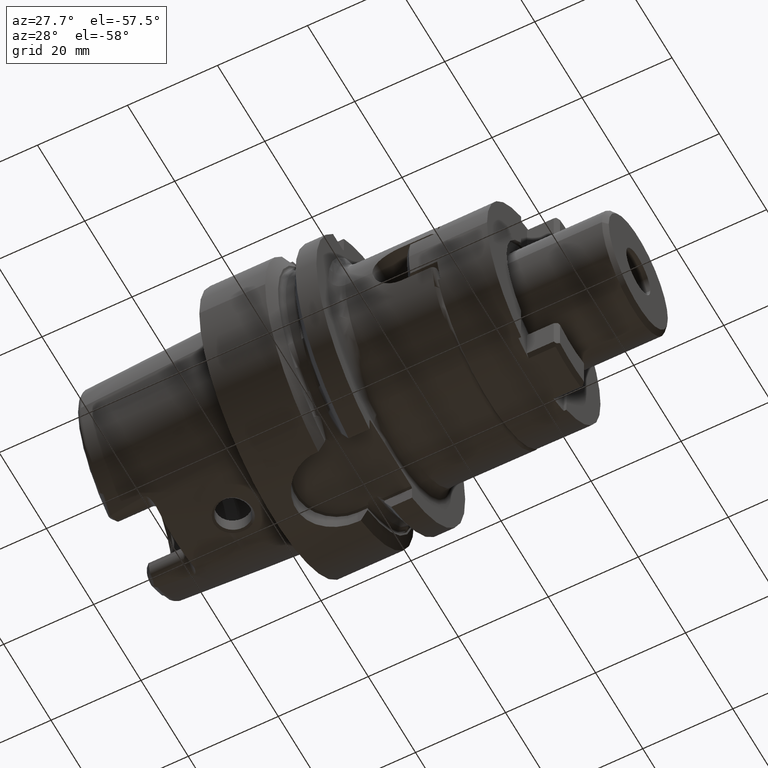
[diagram: clean part render]
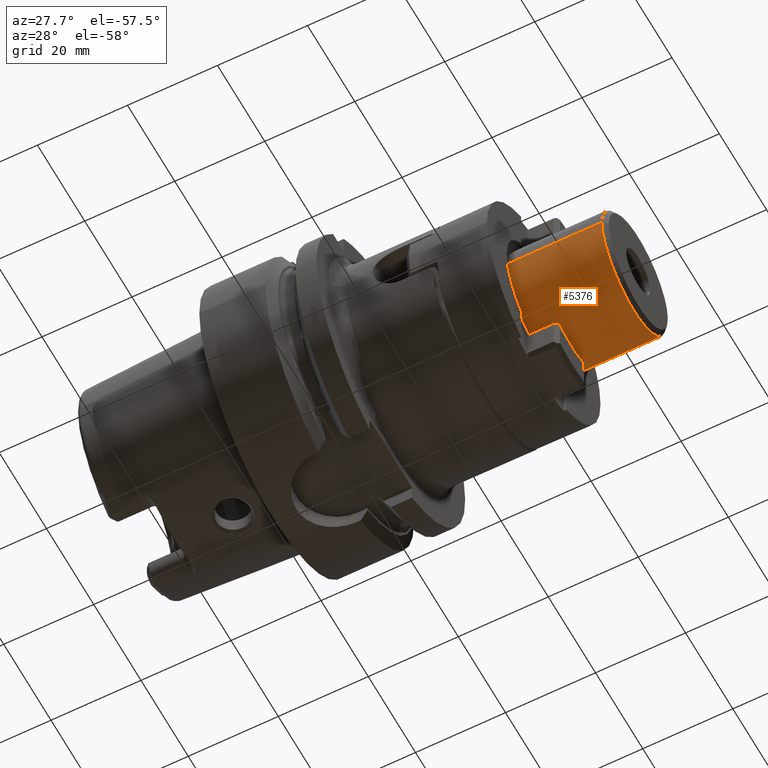
[diagram: same view with one face highlighted and labeled with its STEP entity id]
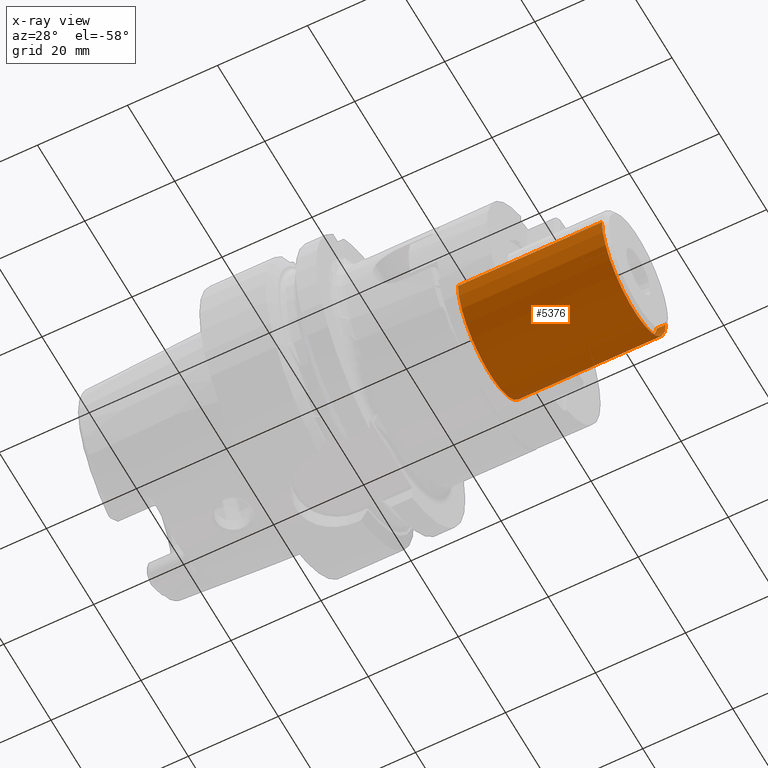
[diagram: x-ray of the same camera — body ghosted, the highlighted face saturated]
A machine part, auxiliary view. The second image highlights one B-rep face of the part: STEP entity #5376.
The next image is the same camera in x-ray: the body ghosted, the highlighted face saturated — about 2% of this face is hidden behind the body in this view.
In plain terms, the highlighted cylindrical surface (partial cylindrical patch) has radius 13.5 mm, axis along (1, 0, 0).
Its self-contained STEP definition (entity closure, byte-faithful):
#1729=CARTESIAN_POINT('',(4.8E1,0.E0,0.E0));
#1730=DIRECTION('',(-1.E0,0.E0,0.E0));
#1731=DIRECTION('',(0.E0,1.E0,0.E0));
#1732=AXIS2_PLACEMENT_3D('',#1729,#1730,#1731);
#1771=CARTESIAN_POINT('',(5.3E1,1.35E1,0.E0));
#1777=CARTESIAN_POINT('',(7.8E1,1.35E1,0.E0));
#1801=CARTESIAN_POINT('',(5.3E1,1.35E1,0.E0));
#1802=CARTESIAN_POINT('',(5.3E1,1.35E1,-1.648552768441E-1));
#1803=CARTESIAN_POINT('',(5.302292811829E1,1.349402560836E1,
-4.921153609639E-1));
#1804=CARTESIAN_POINT('',(5.312821514986E1,1.346711465097E1,
-9.819251903190E-1));
#1805=CARTESIAN_POINT('',(5.330104253693E1,1.342460246537E1,-1.449308697223E0));
#1806=CARTESIAN_POINT('',(5.354220406919E1,1.336882425806E1,-1.893709679150E0));
#1807=CARTESIAN_POINT('',(5.384322942516E1,1.330500588632E1,-2.297210824191E0));
#1808=CARTESIAN_POINT('',(5.420408462295E1,1.323721063373E1,-2.657912605871E0));
#1809=CARTESIAN_POINT('',(5.460802514272E1,1.317271514774E1,-2.958901326861E0));
#1810=CARTESIAN_POINT('',(5.505228796852E1,1.311590792235E1,-3.199683057708E0));
#1811=CARTESIAN_POINT('',(5.551999884180E1,1.307225829664E1,-3.372329272786E0));
#1812=CARTESIAN_POINT('',(5.600882174571E1,1.304457545856E1,-3.477143516538E0));
#1813=CARTESIAN_POINT('',(5.633541314152E1,1.303840481041E1,-3.5E0));
#1814=CARTESIAN_POINT('',(5.65E1,1.303840481041E1,-3.5E0));
#1816=DIRECTION('',(-1.E0,0.E0,0.E0));
#1817=VECTOR('',#1816,5.E0);
#1818=CARTESIAN_POINT('',(5.3E1,1.35E1,0.E0));
#1819=LINE('',#1818,#1817);
#1820=DIRECTION('',(-1.E0,-1.466604615530E-13,-1.324829260921E-12));
#1821=VECTOR('',#1820,3.2E1);
#1822=CARTESIAN_POINT('',(8.E1,-1.35E1,4.239343416735E-11));
#1823=LINE('',#1822,#1821);
#1824=CARTESIAN_POINT('',(8.E1,0.E0,0.E0));
#1825=DIRECTION('',(-1.E0,0.E0,0.E0));
#1826=DIRECTION('',(0.E0,1.E0,0.E0));
#1827=AXIS2_PLACEMENT_3D('',#1824,#1825,#1826);
#1829=DIRECTION('',(-1.E0,2.344791028003E-12,2.119448519249E-11));
#1830=VECTOR('',#1829,2.000000000005E0);
#1831=CARTESIAN_POINT('',(8.E1,1.35E1,-4.239384748565E-11));
#1832=LINE('',#1831,#1830);
#1833=CARTESIAN_POINT('',(7.45E1,1.303840481041E1,-3.5E0));
#1834=CARTESIAN_POINT('',(7.466462196313E1,1.303840481041E1,-3.5E0));
#1835=CARTESIAN_POINT('',(7.499125132549E1,1.304458004578E1,-3.477125889593E0));
#1836=CARTESIAN_POINT('',(7.547985658841E1,1.307224840694E1,-3.372367752933E0));
#1837=CARTESIAN_POINT('',(7.594760871175E1,1.311589744922E1,-3.199723550417E0));
#1838=CARTESIAN_POINT('',(7.639166704002E1,1.317267165776E1,-2.959092860973E0));
#1839=CARTESIAN_POINT('',(7.679572975308E1,1.323717753227E1,-2.658077779345E0));
#1840=CARTESIAN_POINT('',(7.715653194066E1,1.330495894053E1,-2.297472591805E0));
#1841=CARTESIAN_POINT('',(7.745755336129E1,1.336877007038E1,-1.894095388374E0));
#1842=CARTESIAN_POINT('',(7.769880913757E1,1.342456687260E1,-1.449624171870E0));
#1843=CARTESIAN_POINT('',(7.787165350941E1,1.346708152028E1,
-9.824101625936E-1));
#1844=CARTESIAN_POINT('',(7.797709236551E1,1.349403069690E1,
-4.921035932481E-1));
#1845=CARTESIAN_POINT('',(7.8E1,1.35E1,-1.648395091568E-1));
#1846=CARTESIAN_POINT('',(7.8E1,1.35E1,0.E0));
#1848=DIRECTION('',(1.E0,0.E0,0.E0));
#1849=VECTOR('',#1848,1.8E1);
#1850=CARTESIAN_POINT('',(5.65E1,1.303840481041E1,-3.5E0));
#1851=LINE('',#1850,#1849);
#3421=CARTESIAN_POINT('',(4.8E1,1.35E1,0.E0));
#3422=CARTESIAN_POINT('',(4.8E1,-1.35E1,0.E0));
#3423=VERTEX_POINT('',#3421);
#3424=VERTEX_POINT('',#3422);
#3429=CARTESIAN_POINT('',(8.E1,1.35E1,0.E0));
#3430=CARTESIAN_POINT('',(8.E1,-1.35E1,0.E0));
#3431=VERTEX_POINT('',#3429);
#3432=VERTEX_POINT('',#3430);
#3498=VERTEX_POINT('',#1771);
#3501=VERTEX_POINT('',#1777);
#3502=VERTEX_POINT('',#1814);
#3503=VERTEX_POINT('',#1833);
#5358=CARTESIAN_POINT('',(2.325E1,0.E0,0.E0));
#5359=DIRECTION('',(1.E0,0.E0,0.E0));
#5360=DIRECTION('',(0.E0,-1.E0,0.E0));
#5361=AXIS2_PLACEMENT_3D('',#5358,#5359,#5360);
#5362=CYLINDRICAL_SURFACE('',#5361,1.35E1);
#5363=ORIENTED_EDGE('',*,*,#5347,.F.);
#5364=ORIENTED_EDGE('',*,*,#5336,.T.);
#5365=ORIENTED_EDGE('',*,*,#5313,.T.);
#5366=ORIENTED_EDGE('',*,*,#5333,.F.);
#5368=ORIENTED_EDGE('',*,*,#5367,.F.);
#5369=ORIENTED_EDGE('',*,*,#5329,.T.);
#5371=ORIENTED_EDGE('',*,*,#5370,.F.);
#5373=ORIENTED_EDGE('',*,*,#5372,.F.);
#5374=EDGE_LOOP('',(#5363,#5364,#5365,#5366,#5368,#5369,#5371,#5373));
#5375=FACE_OUTER_BOUND('',#5374,.F.);
#5376=ADVANCED_FACE('',(#5375),#5362,.T.);
#1733=CIRCLE('',#1732,1.35E1);
#1815=B_SPLINE_CURVE_WITH_KNOTS('',3,(#1801,#1802,#1803,#1804,#1805,#1806,#1807,
#1808,#1809,#1810,#1811,#1812,#1813,#1814),.UNSPECIFIED.,.F.,.F.,(4,1,1,1,1,1,1,
1,1,1,1,4),(0.E0,9.090909090909E-2,1.818181818182E-1,2.727272727273E-1,
3.636363636364E-1,4.545454545455E-1,5.454545454545E-1,6.363636363636E-1,
7.272727272727E-1,8.181818181818E-1,9.090909090909E-1,1.E0),.UNSPECIFIED.);
#1828=CIRCLE('',#1827,1.35E1);
#1847=B_SPLINE_CURVE_WITH_KNOTS('',3,(#1833,#1834,#1835,#1836,#1837,#1838,#1839,
#1840,#1841,#1842,#1843,#1844,#1845,#1846),.UNSPECIFIED.,.F.,.F.,(4,1,1,1,1,1,1,
1,1,1,1,4),(0.E0,9.090909090909E-2,1.818181818182E-1,2.727272727273E-1,
3.636363636364E-1,4.545454545455E-1,5.454545454545E-1,6.363636363636E-1,
7.272727272727E-1,8.181818181818E-1,9.090909090909E-1,1.E0),.UNSPECIFIED.);
#5313=EDGE_CURVE('',#3423,#3424,#1733,.T.);
#5329=EDGE_CURVE('',#3431,#3501,#1832,.T.);
#5333=EDGE_CURVE('',#3432,#3424,#1823,.T.);
#5336=EDGE_CURVE('',#3498,#3423,#1819,.T.);
#5347=EDGE_CURVE('',#3498,#3502,#1815,.T.);
#5367=EDGE_CURVE('',#3431,#3432,#1828,.T.);
#5370=EDGE_CURVE('',#3503,#3501,#1847,.T.);
#5372=EDGE_CURVE('',#3502,#3503,#1851,.T.);